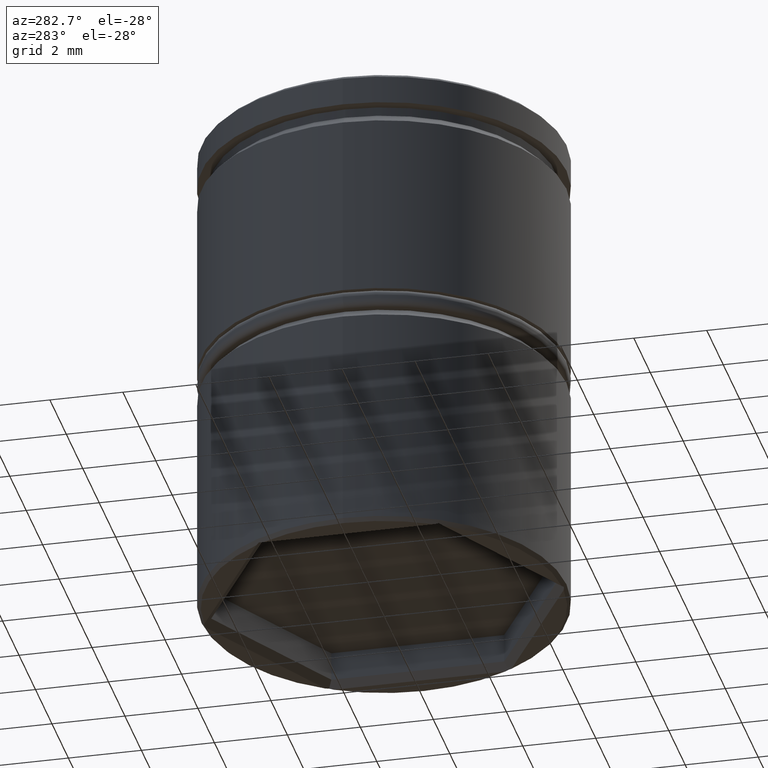
[diagram: clean part render]
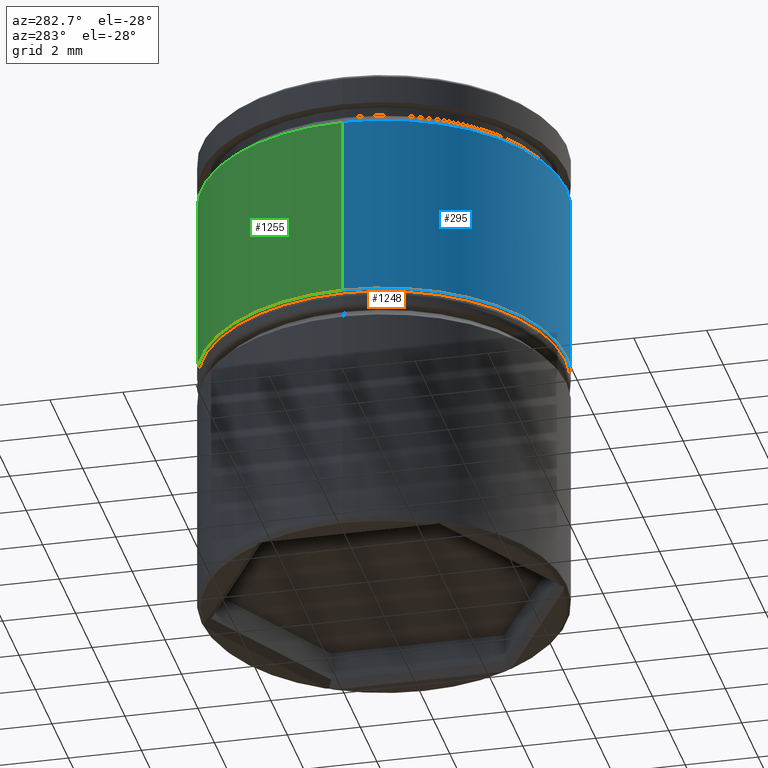
[diagram: same view with three faces highlighted in distinct colors, each labeled with its STEP entity id]
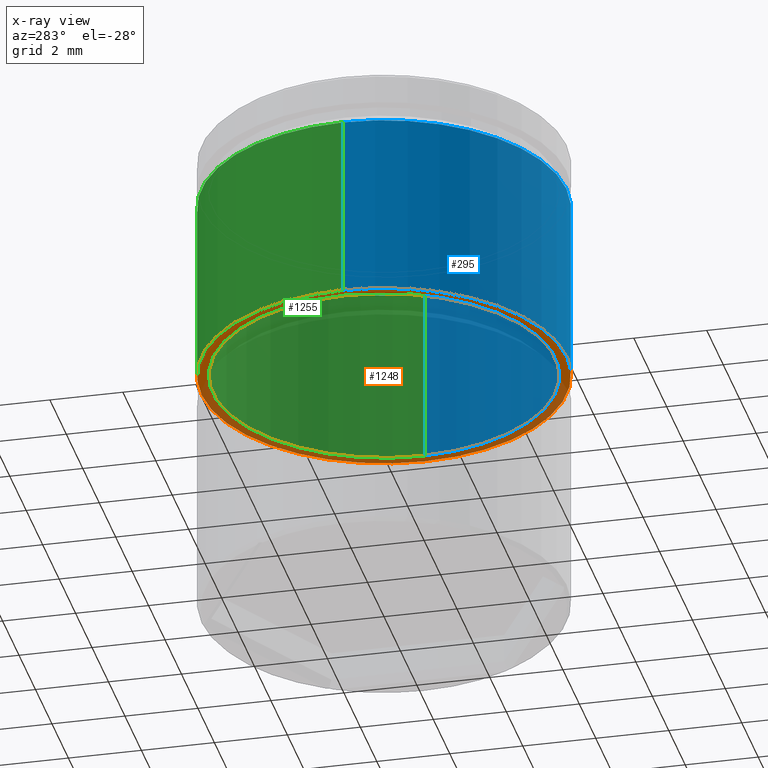
[diagram: x-ray of the same camera — body ghosted, the three highlighted faces saturated]
A machine part, auxiliary view with three faces highlighted in distinct colors.
The next image is the same camera in x-ray (body ghosted, the three faces saturated) — at least one of them is partly hidden behind the body in this view.
Their STEP definitions:

[orange] entity #1248 — the highlighted planar face has unit normal (0, 0, -1).
#3 = AXIS2_PLACEMENT_3D ( 'NONE', #409, #1267, #947 ) ;
#16 = EDGE_CURVE ( 'NONE', #151, #323, #682, .T. ) ;
#56 = ORIENTED_EDGE ( 'NONE', *, *, #1099, .F. ) ;
#78 = CARTESIAN_POINT ( 'NONE',  ( 0.000000000000000000, 0.000000000000000000, -6.499999999999999112 ) ) ;
#93 = DIRECTION ( 'NONE',  ( -0.000000000000000000, -0.000000000000000000, 1.000000000000000000 ) ) ;
#145 = ORIENTED_EDGE ( 'NONE', *, *, #719, .F. ) ;
#151 = VERTEX_POINT ( 'NONE', #156 ) ;
#156 = CARTESIAN_POINT ( 'NONE',  ( -4.700000000000000178, 5.755839955992559655E-16, -6.499999999999999112 ) ) ;
#190 = CARTESIAN_POINT ( 'NONE',  ( -5.000000000000000000, 6.123233995736766282E-16, -6.499999999999999112 ) ) ;
#205 = CIRCLE ( 'NONE', #381, 5.000000000000000000 ) ;
#258 = EDGE_CURVE ( 'NONE', #323, #151, #553, .T. ) ;
#306 = AXIS2_PLACEMENT_3D ( 'NONE', #78, #391, #848 ) ;
#323 = VERTEX_POINT ( 'NONE', #1266 ) ;
#353 = EDGE_LOOP ( 'NONE', ( #56, #145 ) ) ;
#381 = AXIS2_PLACEMENT_3D ( 'NONE', #1033, #93, #724 ) ;
#391 = DIRECTION ( 'NONE',  ( -0.000000000000000000, -0.000000000000000000, 1.000000000000000000 ) ) ;
#409 = CARTESIAN_POINT ( 'NONE',  ( 0.000000000000000000, 0.000000000000000000, -6.499999999999999112 ) ) ;
#415 = CARTESIAN_POINT ( 'NONE',  ( 5.000000000000000000, 0.000000000000000000, -6.499999999999999112 ) ) ;
#519 = AXIS2_PLACEMENT_3D ( 'NONE', #823, #1129, #594 ) ;
#532 = ORIENTED_EDGE ( 'NONE', *, *, #16, .T. ) ;
#553 = CIRCLE ( 'NONE', #1183, 4.700000000000000178 ) ;
#594 = DIRECTION ( 'NONE',  ( -1.000000000000000000, 0.000000000000000000, -0.000000000000000000 ) ) ;
#623 = CIRCLE ( 'NONE', #3, 5.000000000000000000 ) ;
#682 = CIRCLE ( 'NONE', #306, 4.700000000000000178 ) ;
#689 = FACE_BOUND ( 'NONE', #953, .T. ) ;
#693 = DIRECTION ( 'NONE',  ( 1.000000000000000000, 0.000000000000000000, 0.000000000000000000 ) ) ;
#719 = EDGE_CURVE ( 'NONE', #731, #910, #205, .T. ) ;
#724 = DIRECTION ( 'NONE',  ( 1.000000000000000000, 0.000000000000000000, 0.000000000000000000 ) ) ;
#731 = VERTEX_POINT ( 'NONE', #190 ) ;
#820 = DIRECTION ( 'NONE',  ( -0.000000000000000000, -0.000000000000000000, 1.000000000000000000 ) ) ;
#823 = CARTESIAN_POINT ( 'NONE',  ( 0.000000000000000000, 5.000000000000000000, -6.499999999999999112 ) ) ;
#848 = DIRECTION ( 'NONE',  ( 1.000000000000000000, 0.000000000000000000, 0.000000000000000000 ) ) ;
#910 = VERTEX_POINT ( 'NONE', #415 ) ;
#927 = CARTESIAN_POINT ( 'NONE',  ( 0.000000000000000000, 0.000000000000000000, -6.499999999999999112 ) ) ;
#947 = DIRECTION ( 'NONE',  ( 1.000000000000000000, 0.000000000000000000, 0.000000000000000000 ) ) ;
#953 = EDGE_LOOP ( 'NONE', ( #1259, #532 ) ) ;
#1032 = PLANE ( 'NONE',  #519 ) ;
#1033 = CARTESIAN_POINT ( 'NONE',  ( 0.000000000000000000, 0.000000000000000000, -6.499999999999999112 ) ) ;
#1099 = EDGE_CURVE ( 'NONE', #910, #731, #623, .T. ) ;
#1129 = DIRECTION ( 'NONE',  ( 0.000000000000000000, 0.000000000000000000, -1.000000000000000000 ) ) ;
#1183 = AXIS2_PLACEMENT_3D ( 'NONE', #927, #820, #693 ) ;
#1239 = FACE_OUTER_BOUND ( 'NONE', #353, .T. ) ;
#1248 = ADVANCED_FACE ( 'NONE', ( #689, #1239 ), #1032, .T. ) ;
#1259 = ORIENTED_EDGE ( 'NONE', *, *, #258, .T. ) ;
#1266 = CARTESIAN_POINT ( 'NONE',  ( 4.700000000000000178, 0.000000000000000000, -6.499999999999999112 ) ) ;
#1267 = DIRECTION ( 'NONE',  ( -0.000000000000000000, -0.000000000000000000, 1.000000000000000000 ) ) ;

[blue] entity #295 — the highlighted cylindrical surface (partial cylindrical patch) has radius 5 mm, axis along (-0, -0, 1).
#6 = DIRECTION ( 'NONE',  ( -0.000000000000000000, -0.000000000000000000, 1.000000000000000000 ) ) ;
#17 = CARTESIAN_POINT ( 'NONE',  ( 5.000000000000000000, 0.000000000000000000, -1.425000000000000933 ) ) ;
#71 = VECTOR ( 'NONE', #6, 1000.000000000000000 ) ;
#82 = CARTESIAN_POINT ( 'NONE',  ( 0.000000000000000000, 0.000000000000000000, 0.000000000000000000 ) ) ;
#93 = DIRECTION ( 'NONE',  ( -0.000000000000000000, -0.000000000000000000, 1.000000000000000000 ) ) ;
#140 = ORIENTED_EDGE ( 'NONE', *, *, #1128, .F. ) ;
#190 = CARTESIAN_POINT ( 'NONE',  ( -5.000000000000000000, 6.123233995736766282E-16, -6.499999999999999112 ) ) ;
#205 = CIRCLE ( 'NONE', #381, 5.000000000000000000 ) ;
#206 = AXIS2_PLACEMENT_3D ( 'NONE', #1294, #332, #764 ) ;
#289 = AXIS2_PLACEMENT_3D ( 'NONE', #82, #812, #1251 ) ;
#295 = ADVANCED_FACE ( 'NONE', ( #497 ), #513, .T. ) ;
#299 = CARTESIAN_POINT ( 'NONE',  ( 5.000000000000000000, 0.000000000000000000, 0.000000000000000000 ) ) ;
#325 = EDGE_CURVE ( 'NONE', #910, #992, #1135, .T. ) ;
#327 = CARTESIAN_POINT ( 'NONE',  ( -5.000000000000000000, 6.123233995736766282E-16, 0.000000000000000000 ) ) ;
#332 = DIRECTION ( 'NONE',  ( 0.000000000000000000, 0.000000000000000000, -1.000000000000000000 ) ) ;
#381 = AXIS2_PLACEMENT_3D ( 'NONE', #1033, #93, #724 ) ;
#415 = CARTESIAN_POINT ( 'NONE',  ( 5.000000000000000000, 0.000000000000000000, -6.499999999999999112 ) ) ;
#440 = ORIENTED_EDGE ( 'NONE', *, *, #719, .T. ) ;
#497 = FACE_OUTER_BOUND ( 'NONE', #1014, .T. ) ;
#513 = CYLINDRICAL_SURFACE ( 'NONE', #289, 5.000000000000000000 ) ;
#674 = CARTESIAN_POINT ( 'NONE',  ( -5.000000000000000000, 6.123233995736766282E-16, -1.425000000000000933 ) ) ;
#719 = EDGE_CURVE ( 'NONE', #731, #910, #205, .T. ) ;
#724 = DIRECTION ( 'NONE',  ( 1.000000000000000000, 0.000000000000000000, 0.000000000000000000 ) ) ;
#731 = VERTEX_POINT ( 'NONE', #190 ) ;
#764 = DIRECTION ( 'NONE',  ( 1.000000000000000000, 0.000000000000000000, 0.000000000000000000 ) ) ;
#811 = CIRCLE ( 'NONE', #206, 5.000000000000000000 ) ;
#812 = DIRECTION ( 'NONE',  ( -0.000000000000000000, -0.000000000000000000, 1.000000000000000000 ) ) ;
#910 = VERTEX_POINT ( 'NONE', #415 ) ;
#992 = VERTEX_POINT ( 'NONE', #17 ) ;
#1014 = EDGE_LOOP ( 'NONE', ( #140, #440, #1263, #1221 ) ) ;
#1027 = VECTOR ( 'NONE', #1031, 1000.000000000000000 ) ;
#1031 = DIRECTION ( 'NONE',  ( -0.000000000000000000, -0.000000000000000000, 1.000000000000000000 ) ) ;
#1033 = CARTESIAN_POINT ( 'NONE',  ( 0.000000000000000000, 0.000000000000000000, -6.499999999999999112 ) ) ;
#1062 = LINE ( 'NONE', #327, #71 ) ;
#1128 = EDGE_CURVE ( 'NONE', #731, #1339, #1062, .T. ) ;
#1135 = LINE ( 'NONE', #299, #1027 ) ;
#1221 = ORIENTED_EDGE ( 'NONE', *, *, #1333, .T. ) ;
#1251 = DIRECTION ( 'NONE',  ( 1.000000000000000000, 0.000000000000000000, 0.000000000000000000 ) ) ;
#1263 = ORIENTED_EDGE ( 'NONE', *, *, #325, .T. ) ;
#1294 = CARTESIAN_POINT ( 'NONE',  ( 0.000000000000000000, 0.000000000000000000, -1.425000000000000933 ) ) ;
#1333 = EDGE_CURVE ( 'NONE', #992, #1339, #811, .T. ) ;
#1339 = VERTEX_POINT ( 'NONE', #674 ) ;

[green] entity #1255 — the highlighted cylindrical surface (partial cylindrical patch) has radius 5 mm, axis along (-0, -0, 1).
#3 = AXIS2_PLACEMENT_3D ( 'NONE', #409, #1267, #947 ) ;
#6 = DIRECTION ( 'NONE',  ( -0.000000000000000000, -0.000000000000000000, 1.000000000000000000 ) ) ;
#17 = CARTESIAN_POINT ( 'NONE',  ( 5.000000000000000000, 0.000000000000000000, -1.425000000000000933 ) ) ;
#59 = ORIENTED_EDGE ( 'NONE', *, *, #1128, .T. ) ;
#71 = VECTOR ( 'NONE', #6, 1000.000000000000000 ) ;
#83 = CYLINDRICAL_SURFACE ( 'NONE', #919, 5.000000000000000000 ) ;
#84 = ORIENTED_EDGE ( 'NONE', *, *, #1099, .T. ) ;
#190 = CARTESIAN_POINT ( 'NONE',  ( -5.000000000000000000, 6.123233995736766282E-16, -6.499999999999999112 ) ) ;
#299 = CARTESIAN_POINT ( 'NONE',  ( 5.000000000000000000, 0.000000000000000000, 0.000000000000000000 ) ) ;
#325 = EDGE_CURVE ( 'NONE', #910, #992, #1135, .T. ) ;
#327 = CARTESIAN_POINT ( 'NONE',  ( -5.000000000000000000, 6.123233995736766282E-16, 0.000000000000000000 ) ) ;
#363 = AXIS2_PLACEMENT_3D ( 'NONE', #543, #968, #1180 ) ;
#385 = CIRCLE ( 'NONE', #363, 5.000000000000000000 ) ;
#400 = DIRECTION ( 'NONE',  ( -0.000000000000000000, -0.000000000000000000, 1.000000000000000000 ) ) ;
#409 = CARTESIAN_POINT ( 'NONE',  ( 0.000000000000000000, 0.000000000000000000, -6.499999999999999112 ) ) ;
#415 = CARTESIAN_POINT ( 'NONE',  ( 5.000000000000000000, 0.000000000000000000, -6.499999999999999112 ) ) ;
#543 = CARTESIAN_POINT ( 'NONE',  ( 0.000000000000000000, 0.000000000000000000, -1.425000000000000933 ) ) ;
#623 = CIRCLE ( 'NONE', #3, 5.000000000000000000 ) ;
#646 = ORIENTED_EDGE ( 'NONE', *, *, #1384, .T. ) ;
#674 = CARTESIAN_POINT ( 'NONE',  ( -5.000000000000000000, 6.123233995736766282E-16, -1.425000000000000933 ) ) ;
#692 = EDGE_LOOP ( 'NONE', ( #84, #59, #646, #810 ) ) ;
#702 = CARTESIAN_POINT ( 'NONE',  ( 0.000000000000000000, 0.000000000000000000, 0.000000000000000000 ) ) ;
#731 = VERTEX_POINT ( 'NONE', #190 ) ;
#810 = ORIENTED_EDGE ( 'NONE', *, *, #325, .F. ) ;
#910 = VERTEX_POINT ( 'NONE', #415 ) ;
#919 = AXIS2_PLACEMENT_3D ( 'NONE', #702, #400, #1043 ) ;
#947 = DIRECTION ( 'NONE',  ( 1.000000000000000000, 0.000000000000000000, 0.000000000000000000 ) ) ;
#968 = DIRECTION ( 'NONE',  ( 0.000000000000000000, 0.000000000000000000, -1.000000000000000000 ) ) ;
#992 = VERTEX_POINT ( 'NONE', #17 ) ;
#1024 = FACE_OUTER_BOUND ( 'NONE', #692, .T. ) ;
#1027 = VECTOR ( 'NONE', #1031, 1000.000000000000000 ) ;
#1031 = DIRECTION ( 'NONE',  ( -0.000000000000000000, -0.000000000000000000, 1.000000000000000000 ) ) ;
#1043 = DIRECTION ( 'NONE',  ( 1.000000000000000000, 0.000000000000000000, 0.000000000000000000 ) ) ;
#1062 = LINE ( 'NONE', #327, #71 ) ;
#1099 = EDGE_CURVE ( 'NONE', #910, #731, #623, .T. ) ;
#1128 = EDGE_CURVE ( 'NONE', #731, #1339, #1062, .T. ) ;
#1135 = LINE ( 'NONE', #299, #1027 ) ;
#1180 = DIRECTION ( 'NONE',  ( 1.000000000000000000, 0.000000000000000000, 0.000000000000000000 ) ) ;
#1255 = ADVANCED_FACE ( 'NONE', ( #1024 ), #83, .T. ) ;
#1267 = DIRECTION ( 'NONE',  ( -0.000000000000000000, -0.000000000000000000, 1.000000000000000000 ) ) ;
#1339 = VERTEX_POINT ( 'NONE', #674 ) ;
#1384 = EDGE_CURVE ( 'NONE', #1339, #992, #385, .T. ) ;